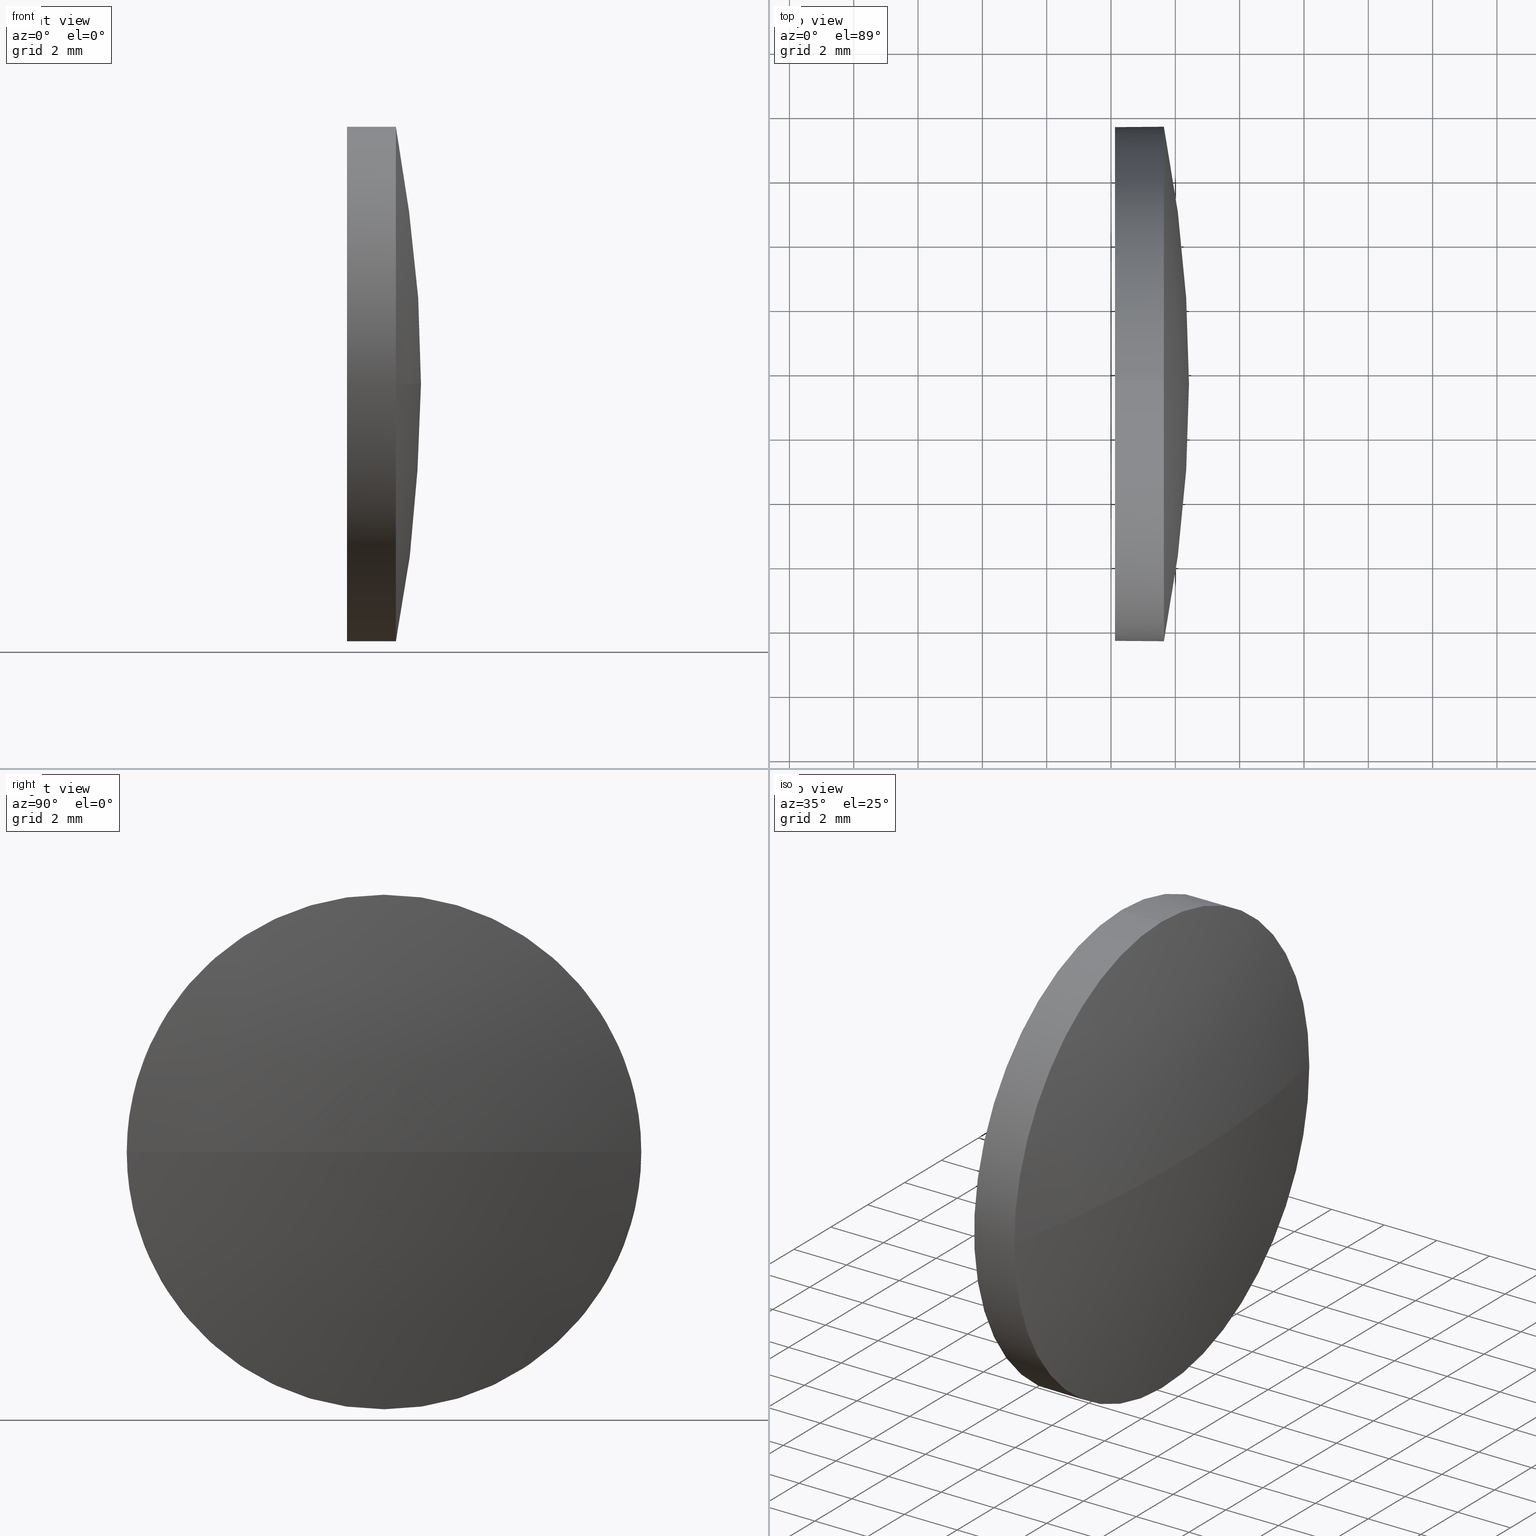
[diagram: canonical four-view strip — front | top / right | iso, engineering-drawing reading convention]
A machine part, canonical four-view strip (front | top / right | iso — engineering-drawing reading convention). The complete STEP part file that produces these views, byte-faithful:
ISO-10303-21;
HEADER;
FILE_DESCRIPTION (( 'STEP AP214' ),
    '1' );
FILE_NAME ('100117.STEP',
    '2019-05-14T03:26:14',
    ( '' ),
    ( '' ),
    'SwSTEP 2.0',
    'SolidWorks 2016',
    '' );
FILE_SCHEMA (( 'AUTOMOTIVE_DESIGN' ));
ENDSEC;

DATA;
#1 = ORIENTED_EDGE ( 'NONE', *, *, #16, .T. ) ;
#2 = EDGE_CURVE ( 'NONE', #76, #46, #73, .T. ) ;
#3 = SPHERICAL_SURFACE ( 'NONE', #153, 41.41564102564099400 ) ;
#4 = ORIENTED_EDGE ( 'NONE', *, *, #2, .T. ) ;
#5 = EDGE_CURVE ( 'NONE', #178, #121, #142, .T. ) ;
#6 = DIRECTION ( 'NONE',  ( -1.000000000000000000, -0.0000000000000000000, -0.0000000000000000000 ) ) ;
#7 = DIRECTION ( 'NONE',  ( 0.0000000000000000000, 0.0000000000000000000, 1.000000000000000000 ) ) ;
#8 = CARTESIAN_POINT ( 'NONE',  ( 569.0087324586373800, 147.6021442105514400, 0.0000000000000000000 ) ) ;
#9 = APPLICATION_CONTEXT ( 'automotive_design' ) ;
#10 = CARTESIAN_POINT ( 'NONE',  ( 609.6443734842783900, 155.6021442105514700, 0.0000000000000000000 ) ) ;
#11 = ORIENTED_EDGE ( 'NONE', *, *, #5, .T. ) ;
#12 = CIRCLE ( 'NONE', #79, 41.41564102564099400 ) ;
#13 = CARTESIAN_POINT ( 'NONE',  ( 606.2015567794326200, 147.6021442105515000, 0.0000000000000000000 ) ) ;
#14 = SURFACE_STYLE_FILL_AREA ( #42 ) ;
#15 = DIRECTION ( 'NONE',  ( -1.000000000000000000, -0.0000000000000000000, -0.0000000000000000000 ) ) ;
#16 = EDGE_CURVE ( 'NONE', #121, #117, #69, .T. ) ;
#17 = DIRECTION ( 'NONE',  ( 0.0000000000000000000, 0.0000000000000000000, -1.000000000000000000 ) ) ;
#18 = ADVANCED_FACE ( 'NONE', ( #168 ), #48, .T. ) ;
#19 = DIRECTION ( 'NONE',  ( 0.0000000000000000000, 0.0000000000000000000, 1.000000000000000000 ) ) ;
#20 = EDGE_CURVE ( 'NONE', #46, #178, #84, .T. ) ;
#21 = ORIENTED_EDGE ( 'NONE', *, *, #16, .F. ) ;
#22 = VECTOR ( 'NONE', #74, 1000.000000000000000 ) ;
#23 = DIRECTION ( 'NONE',  ( -1.000000000000000000, -0.0000000000000000000, -0.0000000000000000000 ) ) ;
#24 = CARTESIAN_POINT ( 'NONE',  ( 608.1243734842782900, 147.6021442105515000, 7.999999999999979600 ) ) ;
#25 = CARTESIAN_POINT ( 'NONE',  ( 606.2015567794326200, 147.6021442105515000, -7.999999999999979600 ) ) ;
#26 = CARTESIAN_POINT ( 'NONE',  ( 609.6443734842783900, 147.6021442105515000, 0.0000000000000000000 ) ) ;
#27 = PRESENTATION_LAYER_ASSIGNMENT (  '', '', ( #47 ) ) ;
#28 =( NAMED_UNIT ( * ) PLANE_ANGLE_UNIT ( ) SI_UNIT ( $, .RADIAN. ) );
#29 = EDGE_LOOP ( 'NONE', ( #156, #147, #92, #81, #155 ) ) ;
#30 = AXIS2_PLACEMENT_3D ( 'NONE', #33, #150, #166 ) ;
#31 = DIRECTION ( 'NONE',  ( -1.000000000000000000, -0.0000000000000000000, -0.0000000000000000000 ) ) ;
#32 = ORIENTED_EDGE ( 'NONE', *, *, #105, .T. ) ;
#33 = CARTESIAN_POINT ( 'NONE',  ( 569.0087324586373800, 147.6021442105514400, 0.0000000000000000000 ) ) ;
#34 = SURFACE_STYLE_USAGE ( .BOTH. , #96 ) ;
#35 = MECHANICAL_DESIGN_GEOMETRIC_PRESENTATION_REPRESENTATION (  '', ( #47 ), #94 ) ;
#36 = ADVANCED_FACE ( 'NONE', ( #126 ), #108, .F. ) ;
#37 = ORIENTED_EDGE ( 'NONE', *, *, #58, .F. ) ;
#38 = CIRCLE ( 'NONE', #174, 7.999999999999979600 ) ;
#39 = DIRECTION ( 'NONE',  ( 0.0000000000000000000, 0.0000000000000000000, 1.000000000000000000 ) ) ;
#40 = AXIS2_PLACEMENT_3D ( 'NONE', #67, #163, #17 ) ;
#41 = CARTESIAN_POINT ( 'NONE',  ( 608.1243734842782900, 147.6021442105515000, -7.999999999999979600 ) ) ;
#42 = FILL_AREA_STYLE ('',( #154 ) ) ;
#43 = MANIFOLD_SOLID_BREP ( '��ת3', #136 ) ;
#44 = APPLICATION_CONTEXT ( 'automotive_design' ) ;
#45 = ORIENTED_EDGE ( 'NONE', *, *, #105, .F. ) ;
#46 = VERTEX_POINT ( 'NONE', #133 ) ;
#47 = STYLED_ITEM ( 'NONE', ( #89 ), #109 ) ;
#48 = CYLINDRICAL_SURFACE ( 'NONE', #49, 7.999999999999979600 ) ;
#49 = AXIS2_PLACEMENT_3D ( 'NONE', #118, #6, #19 ) ;
#50 = ORIENTED_EDGE ( 'NONE', *, *, #90, .T. ) ;
#51 = CARTESIAN_POINT ( 'NONE',  ( 608.1243734842782900, 147.6021442105515000, 0.0000000000000000000 ) ) ;
#52 = FILL_AREA_STYLE ('',( #179 ) ) ;
#53 = DIRECTION ( 'NONE',  ( 0.0000000000000000000, 0.0000000000000000000, 1.000000000000000000 ) ) ;
#54 = PRODUCT ( '100117', '100117', '', ( #141 ) ) ;
#55 = ADVANCED_FACE ( 'NONE', ( #175 ), #97, .T. ) ;
#56 = PRODUCT_RELATED_PRODUCT_CATEGORY ( 'part', '', ( #54 ) ) ;
#57 = APPLICATION_PROTOCOL_DEFINITION ( 'draft international standard', 'automotive_design', 1998, #44 ) ;
#58 = EDGE_CURVE ( 'NONE', #76, #121, #12, .T. ) ;
#59 = EDGE_LOOP ( 'NONE', ( #37, #4, #115, #21 ) ) ;
#60 = DIRECTION ( 'NONE',  ( -0.0000000000000000000, 0.0000000000000000000, 1.000000000000000000 ) ) ;
#61 = EDGE_LOOP ( 'NONE', ( #181, #129, #167, #80 ) ) ;
#62 = MECHANICAL_DESIGN_GEOMETRIC_PRESENTATION_REPRESENTATION (  '', ( #88 ), #143 ) ;
#63 = UNCERTAINTY_MEASURE_WITH_UNIT (LENGTH_MEASURE( 1.000000000000000100E-005 ), #83, 'distance_accuracy_value', 'NONE');
#64 = CARTESIAN_POINT ( 'NONE',  ( 569.0087324586373800, 147.6021442105514400, 0.0000000000000000000 ) ) ;
#65 = DIRECTION ( 'NONE',  ( -1.000000000000000000, -0.0000000000000000000, -0.0000000000000000000 ) ) ;
#66 = DIRECTION ( 'NONE',  ( 0.0000000000000000000, 0.0000000000000000000, 1.000000000000000000 ) ) ;
#67 = CARTESIAN_POINT ( 'NONE',  ( 608.1243734842782900, 147.6021442105515000, 0.0000000000000000000 ) ) ;
#68 = CYLINDRICAL_SURFACE ( 'NONE', #113, 7.999999999999979600 ) ;
#69 = CIRCLE ( 'NONE', #149, 7.999999999999979600 ) ;
#70 = AXIS2_PLACEMENT_3D ( 'NONE', #101, #39, #172 ) ;
#71 = DIRECTION ( 'NONE',  ( -1.000000000000000000, -0.0000000000000000000, -0.0000000000000000000 ) ) ;
#72 = SURFACE_STYLE_USAGE ( .BOTH. , #100 ) ;
#73 = CIRCLE ( 'NONE', #30, 41.41564102564099400 ) ;
#74 = DIRECTION ( 'NONE',  ( -1.000000000000000000, -0.0000000000000000000, -0.0000000000000000000 ) ) ;
#75 = AXIS2_PLACEMENT_3D ( 'NONE', #8, #110, #135 ) ;
#76 = VERTEX_POINT ( 'NONE', #86 ) ;
#77 = CARTESIAN_POINT ( 'NONE',  ( 609.6443734842783900, 147.6021442105515000, 0.0000000000000000000 ) ) ;
#78 = LINE ( 'NONE', #103, #144 ) ;
#79 = AXIS2_PLACEMENT_3D ( 'NONE', #104, #60, #176 ) ;
#80 = ORIENTED_EDGE ( 'NONE', *, *, #20, .F. ) ;
#81 = ORIENTED_EDGE ( 'NONE', *, *, #138, .T. ) ;
#82 = FACE_OUTER_BOUND ( 'NONE', #29, .T. ) ;
#83 =( LENGTH_UNIT ( ) NAMED_UNIT ( * ) SI_UNIT ( .MILLI., .METRE. ) );
#84 = CIRCLE ( 'NONE', #157, 7.999999999999979600 ) ;
#85 = DIRECTION ( 'NONE',  ( 0.0000000000000000000, 0.0000000000000000000, 1.000000000000000000 ) ) ;
#86 = CARTESIAN_POINT ( 'NONE',  ( 610.4243734842783600, 147.6021442105514400, 0.0000000000000000000 ) ) ;
#87 = ORIENTED_EDGE ( 'NONE', *, *, #138, .F. ) ;
#88 = STYLED_ITEM ( 'NONE', ( #99 ), #43 ) ;
#89 = PRESENTATION_STYLE_ASSIGNMENT (( #72 ) ) ;
#90 = EDGE_CURVE ( 'NONE', #117, #137, #119, .T. ) ;
#91 = DIRECTION ( 'NONE',  ( 0.0000000000000000000, 1.000000000000000000, 0.0000000000000000000 ) ) ;
#92 = ORIENTED_EDGE ( 'NONE', *, *, #20, .T. ) ;
#93 = DIRECTION ( 'NONE',  ( -0.0000000000000000000, 0.0000000000000000000, -1.000000000000000000 ) ) ;
#94 =( GEOMETRIC_REPRESENTATION_CONTEXT ( 3 ) GLOBAL_UNCERTAINTY_ASSIGNED_CONTEXT ( ( #63 ) ) GLOBAL_UNIT_ASSIGNED_CONTEXT ( ( #83, #120, #184 ) ) REPRESENTATION_CONTEXT ( 'NONE', 'WORKASPACE' ) );
#95 = DIRECTION ( 'NONE',  ( -1.000000000000000000, -0.0000000000000000000, -0.0000000000000000000 ) ) ;
#96 = SURFACE_SIDE_STYLE ('',( #158 ) ) ;
#97 = SPHERICAL_SURFACE ( 'NONE', #75, 41.41564102564099400 ) ;
#98 = ADVANCED_FACE ( 'NONE', ( #185 ), #3, .T. ) ;
#99 = PRESENTATION_STYLE_ASSIGNMENT (( #34 ) ) ;
#100 = SURFACE_SIDE_STYLE ('',( #14 ) ) ;
#101 = CARTESIAN_POINT ( 'NONE',  ( 0.0000000000000000000, 0.0000000000000000000, 0.0000000000000000000 ) ) ;
#102 = PRESENTATION_LAYER_ASSIGNMENT (  '', '', ( #88 ) ) ;
#103 = CARTESIAN_POINT ( 'NONE',  ( 606.2015567794326200, 147.6021442105515000, 7.999999999999979600 ) ) ;
#104 = CARTESIAN_POINT ( 'NONE',  ( 569.0087324586373800, 147.6021442105514400, 0.0000000000000000000 ) ) ;
#105 = EDGE_CURVE ( 'NONE', #152, #137, #183, .T. ) ;
#106 = PRODUCT_DEFINITION ( 'δ֪', '', #180, #159 ) ;
#107 = ADVANCED_FACE ( 'NONE', ( #82 ), #68, .T. ) ;
#108 = PLANE ( 'NONE',  #40 ) ;
#109 = ADVANCED_BREP_SHAPE_REPRESENTATION ( '100117', ( #43, #70 ), #125 ) ;
#110 = DIRECTION ( 'NONE',  ( -0.0000000000000000000, 0.0000000000000000000, -1.000000000000000000 ) ) ;
#111 =( NAMED_UNIT ( * ) SI_UNIT ( $, .STERADIAN. ) SOLID_ANGLE_UNIT ( ) );
#112 = DIRECTION ( 'NONE',  ( -1.000000000000000000, -0.0000000000000000000, -0.0000000000000000000 ) ) ;
#113 = AXIS2_PLACEMENT_3D ( 'NONE', #13, #31, #128 ) ;
#114 = EDGE_LOOP ( 'NONE', ( #32, #132 ) ) ;
#115 = ORIENTED_EDGE ( 'NONE', *, *, #161, .F. ) ;
#116 = EDGE_LOOP ( 'NONE', ( #1, #50, #45, #87, #11 ) ) ;
#117 = VERTEX_POINT ( 'NONE', #123 ) ;
#118 = CARTESIAN_POINT ( 'NONE',  ( 606.2015567794326200, 147.6021442105515000, 0.0000000000000000000 ) ) ;
#119 = LINE ( 'NONE', #25, #22 ) ;
#120 =( NAMED_UNIT ( * ) PLANE_ANGLE_UNIT ( ) SI_UNIT ( $, .RADIAN. ) );
#121 = VERTEX_POINT ( 'NONE', #10 ) ;
#122 = CARTESIAN_POINT ( 'NONE',  ( 608.1243734842782900, 147.6021442105515000, 0.0000000000000000000 ) ) ;
#123 = CARTESIAN_POINT ( 'NONE',  ( 609.6443734842783900, 147.6021442105515000, -7.999999999999979600 ) ) ;
#124 = CIRCLE ( 'NONE', #164, 7.999999999999979600 ) ;
#125 =( GEOMETRIC_REPRESENTATION_CONTEXT ( 3 ) GLOBAL_UNCERTAINTY_ASSIGNED_CONTEXT ( ( #140 ) ) GLOBAL_UNIT_ASSIGNED_CONTEXT ( ( #139, #28, #111 ) ) REPRESENTATION_CONTEXT ( 'NONE', 'WORKASPACE' ) );
#126 = FACE_OUTER_BOUND ( 'NONE', #114, .T. ) ;
#127 = EDGE_CURVE ( 'NONE', #137, #152, #124, .T. ) ;
#128 = DIRECTION ( 'NONE',  ( 0.0000000000000000000, 0.0000000000000000000, 1.000000000000000000 ) ) ;
#129 = ORIENTED_EDGE ( 'NONE', *, *, #58, .T. ) ;
#130 = COLOUR_RGB ( '',1.000000000000000000, 1.000000000000000000, 1.000000000000000000 ) ;
#131 = CARTESIAN_POINT ( 'NONE',  ( 609.6443734842783900, 147.6021442105515000, 0.0000000000000000000 ) ) ;
#132 = ORIENTED_EDGE ( 'NONE', *, *, #127, .T. ) ;
#133 = CARTESIAN_POINT ( 'NONE',  ( 609.6443734842783900, 139.6021442105515000, -9.797174393178782300E-016 ) ) ;
#134 =( NAMED_UNIT ( * ) PLANE_ANGLE_UNIT ( ) SI_UNIT ( $, .RADIAN. ) );
#135 = DIRECTION ( 'NONE',  ( 0.0000000000000000000, 1.000000000000000000, 0.0000000000000000000 ) ) ;
#136 = CLOSED_SHELL ( 'NONE', ( #18, #55, #98, #107, #36 ) ) ;
#137 = VERTEX_POINT ( 'NONE', #41 ) ;
#138 = EDGE_CURVE ( 'NONE', #178, #152, #78, .T. ) ;
#139 =( LENGTH_UNIT ( ) NAMED_UNIT ( * ) SI_UNIT ( .MILLI., .METRE. ) );
#140 = UNCERTAINTY_MEASURE_WITH_UNIT (LENGTH_MEASURE( 1.000000000000000100E-005 ), #139, 'distance_accuracy_value', 'NONE');
#141 = PRODUCT_CONTEXT ( 'NONE', #44, 'mechanical' ) ;
#142 = CIRCLE ( 'NONE', #145, 7.999999999999979600 ) ;
#143 =( GEOMETRIC_REPRESENTATION_CONTEXT ( 3 ) GLOBAL_UNCERTAINTY_ASSIGNED_CONTEXT ( ( #160 ) ) GLOBAL_UNIT_ASSIGNED_CONTEXT ( ( #165, #134, #182 ) ) REPRESENTATION_CONTEXT ( 'NONE', 'WORKASPACE' ) );
#144 = VECTOR ( 'NONE', #23, 1000.000000000000000 ) ;
#145 = AXIS2_PLACEMENT_3D ( 'NONE', #77, #95, #53 ) ;
#146 = DIRECTION ( 'NONE',  ( -1.000000000000000000, -0.0000000000000000000, -0.0000000000000000000 ) ) ;
#147 = ORIENTED_EDGE ( 'NONE', *, *, #161, .T. ) ;
#148 = CARTESIAN_POINT ( 'NONE',  ( 609.6443734842783900, 147.6021442105515000, 0.0000000000000000000 ) ) ;
#149 = AXIS2_PLACEMENT_3D ( 'NONE', #131, #15, #66 ) ;
#150 = DIRECTION ( 'NONE',  ( 0.0000000000000000000, 1.224646799147353200E-016, -1.000000000000000000 ) ) ;
#151 = AXIS2_PLACEMENT_3D ( 'NONE', #51, #146, #162 ) ;
#152 = VERTEX_POINT ( 'NONE', #24 ) ;
#153 = AXIS2_PLACEMENT_3D ( 'NONE', #64, #93, #91 ) ;
#154 = FILL_AREA_STYLE_COLOUR ( '', #173 ) ;
#155 = ORIENTED_EDGE ( 'NONE', *, *, #127, .F. ) ;
#156 = ORIENTED_EDGE ( 'NONE', *, *, #90, .F. ) ;
#157 = AXIS2_PLACEMENT_3D ( 'NONE', #148, #65, #7 ) ;
#158 = SURFACE_STYLE_FILL_AREA ( #52 ) ;
#159 = PRODUCT_DEFINITION_CONTEXT ( 'detailed design', #9, 'design' ) ;
#160 = UNCERTAINTY_MEASURE_WITH_UNIT (LENGTH_MEASURE( 1.000000000000000100E-005 ), #165, 'distance_accuracy_value', 'NONE');
#161 = EDGE_CURVE ( 'NONE', #117, #46, #38, .T. ) ;
#162 = DIRECTION ( 'NONE',  ( 0.0000000000000000000, 0.0000000000000000000, 1.000000000000000000 ) ) ;
#163 = DIRECTION ( 'NONE',  ( 1.000000000000000000, 0.0000000000000000000, 0.0000000000000000000 ) ) ;
#164 = AXIS2_PLACEMENT_3D ( 'NONE', #122, #112, #85 ) ;
#165 =( LENGTH_UNIT ( ) NAMED_UNIT ( * ) SI_UNIT ( .MILLI., .METRE. ) );
#166 = DIRECTION ( 'NONE',  ( 0.0000000000000000000, 1.000000000000000000, 1.224646799147353200E-016 ) ) ;
#167 = ORIENTED_EDGE ( 'NONE', *, *, #5, .F. ) ;
#168 = FACE_OUTER_BOUND ( 'NONE', #116, .T. ) ;
#169 = DIRECTION ( 'NONE',  ( 0.0000000000000000000, 0.0000000000000000000, 1.000000000000000000 ) ) ;
#170 = CARTESIAN_POINT ( 'NONE',  ( 609.6443734842783900, 147.6021442105515000, 7.999999999999979600 ) ) ;
#171 = PRODUCT_DEFINITION_SHAPE ( 'NONE', 'NONE',  #106 ) ;
#172 = DIRECTION ( 'NONE',  ( 1.000000000000000000, 0.0000000000000000000, 0.0000000000000000000 ) ) ;
#173 = COLOUR_RGB ( '',1.000000000000000000, 1.000000000000000000, 1.000000000000000000 ) ;
#174 = AXIS2_PLACEMENT_3D ( 'NONE', #26, #71, #169 ) ;
#175 = FACE_OUTER_BOUND ( 'NONE', #59, .T. ) ;
#176 = DIRECTION ( 'NONE',  ( 1.000000000000000000, 0.0000000000000000000, 0.0000000000000000000 ) ) ;
#177 = SHAPE_DEFINITION_REPRESENTATION ( #171, #109 ) ;
#178 = VERTEX_POINT ( 'NONE', #170 ) ;
#179 = FILL_AREA_STYLE_COLOUR ( '', #130 ) ;
#180 = PRODUCT_DEFINITION_FORMATION_WITH_SPECIFIED_SOURCE ( '�κ�', '', #54, .NOT_KNOWN. ) ;
#181 = ORIENTED_EDGE ( 'NONE', *, *, #2, .F. ) ;
#182 =( NAMED_UNIT ( * ) SI_UNIT ( $, .STERADIAN. ) SOLID_ANGLE_UNIT ( ) );
#183 = CIRCLE ( 'NONE', #151, 7.999999999999979600 ) ;
#184 =( NAMED_UNIT ( * ) SI_UNIT ( $, .STERADIAN. ) SOLID_ANGLE_UNIT ( ) );
#185 = FACE_OUTER_BOUND ( 'NONE', #61, .T. ) ;
#186 = APPLICATION_PROTOCOL_DEFINITION ( 'draft international standard', 'automotive_design', 1998, #9 ) ;
ENDSEC;
END-ISO-10303-21;
